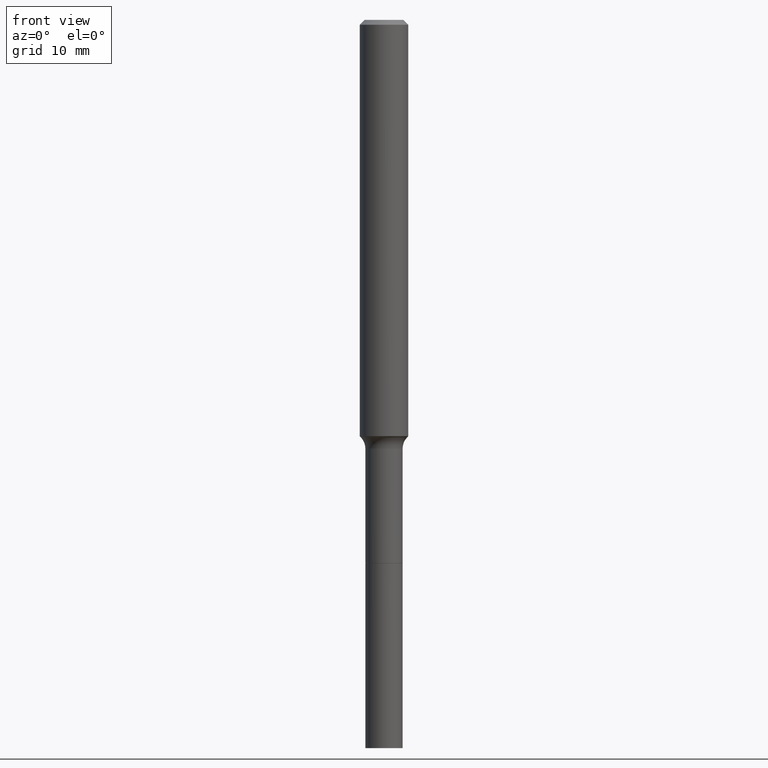
[diagram: clean part render]
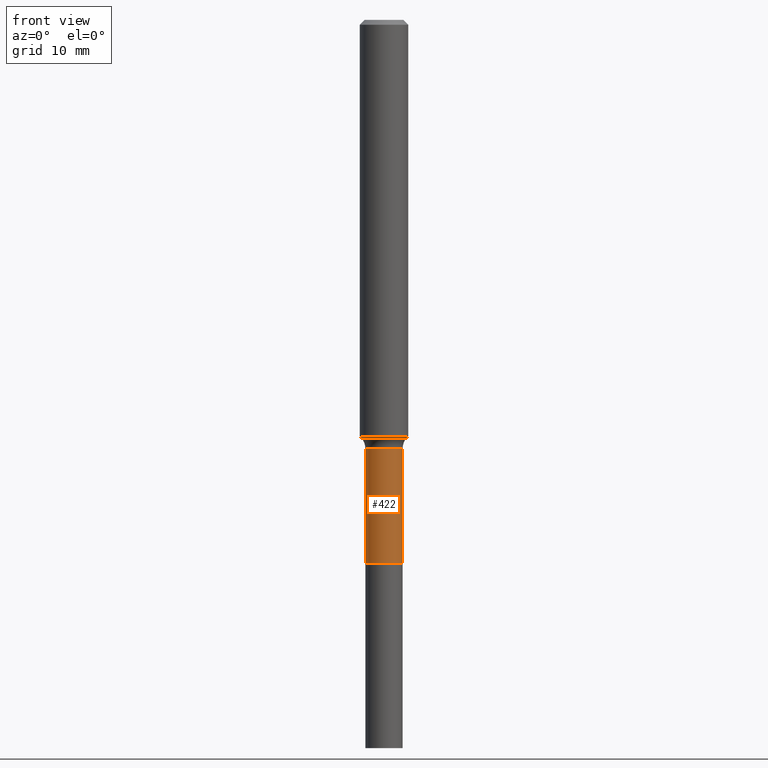
[diagram: same view with one face highlighted and labeled with its STEP entity id]
A machine part, front view. The second image highlights one B-rep face of the part: STEP entity #422.
In plain terms, the highlighted cylindrical surface (edge-blend (fillet) strip) has radius 2.3 mm, axis along (-0, 0, 1).
Its self-contained STEP definition (entity closure, byte-faithful):
#28 = EDGE_CURVE ( 'NONE', #224, #464, #210, .T. ) ;
#32 = VECTOR ( 'NONE', #514, 39.37007874015748143 ) ;
#35 = ORIENTED_EDGE ( 'NONE', *, *, #151, .T. ) ;
#40 = CARTESIAN_POINT ( 'NONE',  ( 0.000000000000000000, 0.000000000000000000, 0.000000000000000000 ) ) ;
#42 = ORIENTED_EDGE ( 'NONE', *, *, #28, .F. ) ;
#78 = VERTEX_POINT ( 'NONE', #130 ) ;
#79 = EDGE_CURVE ( 'NONE', #224, #78, #311, .T. ) ;
#85 = DIRECTION ( 'NONE',  ( -2.445468806185136597E-29, 3.491481338843145583E-15, 1.000000000000000000 ) ) ;
#106 = AXIS2_PLACEMENT_3D ( 'NONE', #448, #253, #490 ) ;
#115 = CARTESIAN_POINT ( 'NONE',  ( 0.09054999999999997773, -6.323072704644912724E-16, 4.415378070483218706E-30 ) ) ;
#117 = FACE_OUTER_BOUND ( 'NONE', #336, .T. ) ;
#122 = ORIENTED_EDGE ( 'NONE', *, *, #212, .F. ) ;
#130 = CARTESIAN_POINT ( 'NONE',  ( 0.09055000000000000548, -9.863085634098001349E-15, -2.643799999999999706 ) ) ;
#151 = EDGE_CURVE ( 'NONE', #78, #502, #194, .T. ) ;
#169 = VECTOR ( 'NONE', #289, 39.37007874015748143 ) ;
#176 = CARTESIAN_POINT ( 'NONE',  ( -0.09055000000000000548, -7.614131493200209369E-15, -2.643799999999999706 ) ) ;
#194 = LINE ( 'NONE', #115, #32 ) ;
#210 = LINE ( 'NONE', #452, #169 ) ;
#212 = EDGE_CURVE ( 'NONE', #464, #502, #367, .T. ) ;
#224 = VERTEX_POINT ( 'NONE', #176 ) ;
#232 = CARTESIAN_POINT ( 'NONE',  ( -0.09054999999999993610, -7.614131493200210946E-15, -2.086299999999999599 ) ) ;
#237 = DIRECTION ( 'NONE',  ( 1.000000000000000000, -6.982962677686266711E-15, 4.876176775795935793E-29 ) ) ;
#252 = DIRECTION ( 'NONE',  ( 1.000000000000000000, -6.982962677686277755E-15, 0.000000000000000000 ) ) ;
#253 = DIRECTION ( 'NONE',  ( -2.445468806185136597E-29, 3.491481338843145583E-15, 1.000000000000000000 ) ) ;
#268 = CARTESIAN_POINT ( 'NONE',  ( 0.09054999999999993610, -7.916584787692945195E-15, -2.086299999999999599 ) ) ;
#287 = DIRECTION ( 'NONE',  ( -2.445468806185136597E-29, 3.491481338843145583E-15, 1.000000000000000000 ) ) ;
#289 = DIRECTION ( 'NONE',  ( -2.445468806185136877E-29, 3.491481338843145188E-15, 1.000000000000000000 ) ) ;
#311 = CIRCLE ( 'NONE', #424, 0.09055000000000000548 ) ;
#325 = ORIENTED_EDGE ( 'NONE', *, *, #79, .T. ) ;
#333 = CYLINDRICAL_SURFACE ( 'NONE', #375, 0.09054999999999997773 ) ;
#336 = EDGE_LOOP ( 'NONE', ( #42, #325, #35, #122 ) ) ;
#367 = CIRCLE ( 'NONE', #106, 0.09054999999999993610 ) ;
#375 = AXIS2_PLACEMENT_3D ( 'NONE', #40, #287, #237 ) ;
#422 = ADVANCED_FACE ( 'NONE', ( #117 ), #333, .T. ) ;
#424 = AXIS2_PLACEMENT_3D ( 'NONE', #445, #85, #252 ) ;
#445 = CARTESIAN_POINT ( 'NONE',  ( 6.465330429792263485E-29, -9.230778363633508302E-15, -2.643799999999999706 ) ) ;
#448 = CARTESIAN_POINT ( 'NONE',  ( 5.101981570344049922E-29, -7.284277517228453725E-15, -2.086299999999999599 ) ) ;
#452 = CARTESIAN_POINT ( 'NONE',  ( -0.09054999999999997773, 6.433964472307705601E-16, -4.454095724225815817E-30 ) ) ;
#464 = VERTEX_POINT ( 'NONE', #232 ) ;
#490 = DIRECTION ( 'NONE',  ( 1.000000000000000000, -6.982962677686261189E-15, 0.000000000000000000 ) ) ;
#502 = VERTEX_POINT ( 'NONE', #268 ) ;
#514 = DIRECTION ( 'NONE',  ( -2.445468806185136877E-29, 3.491481338843145188E-15, 1.000000000000000000 ) ) ;